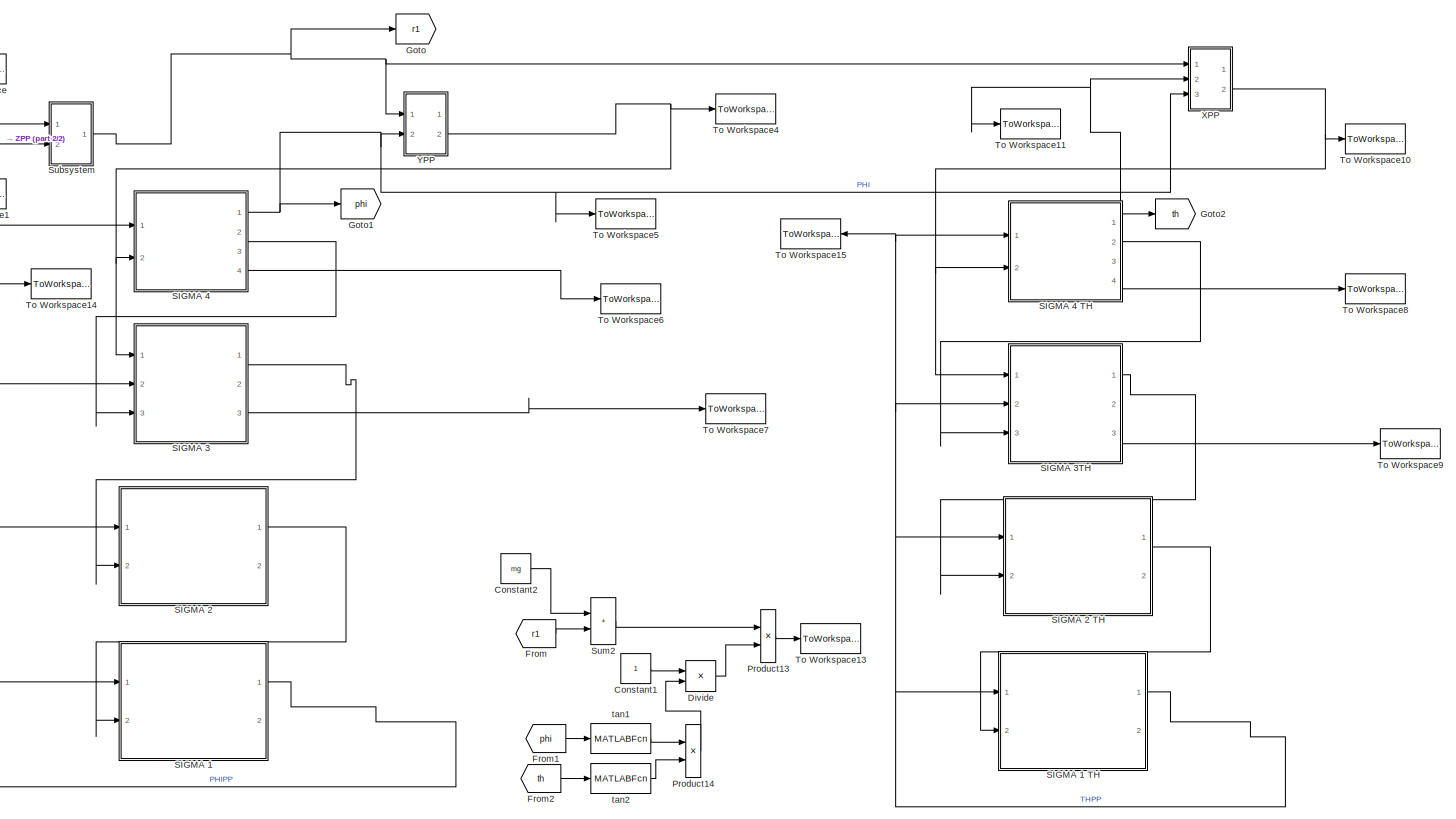
[diagram: root canvas - part 1/2, most of the canvas]
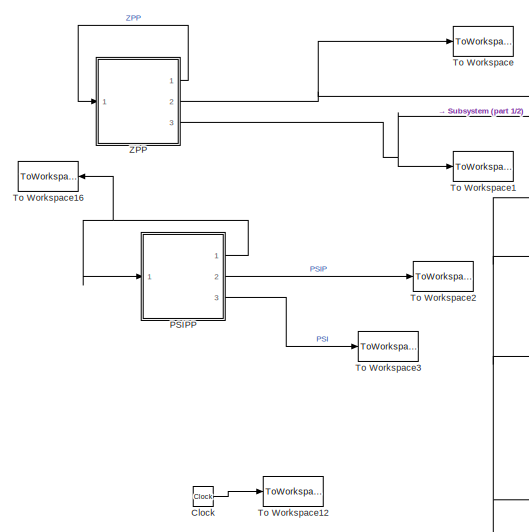
[diagram: root canvas - part 2/2, middle left region]
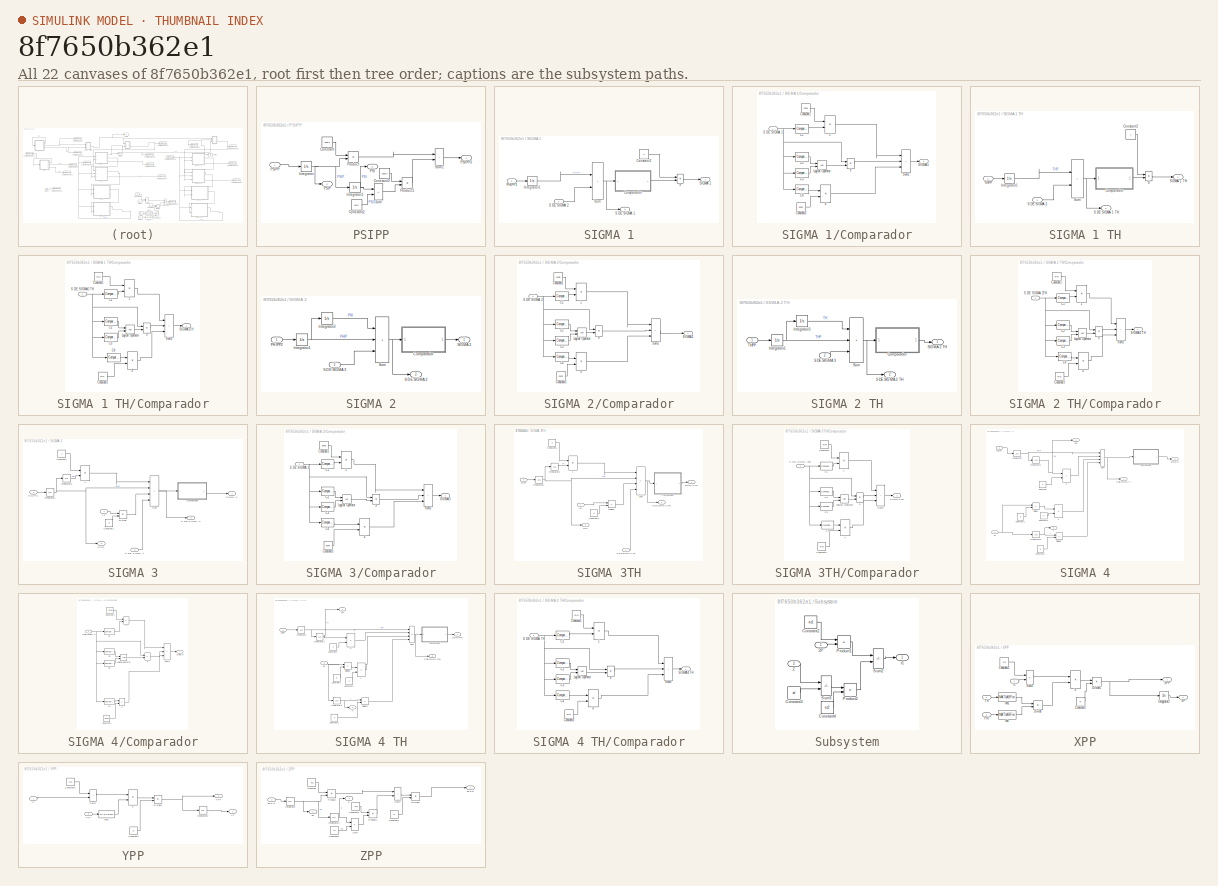
[diagram: thumbnail index - all 22 canvases of the model, root first then tree order]
MODEL slx_8f7650b362e1
KIND model
CONFIG AbsTol = auto
CONFIG EnableMultiTasking = on
CONFIG FixedStep = auto
CONFIG MaxStep = auto
CONFIG MinStep = auto
CONFIG RelTol = 1e-3
CONFIG SampleTimeConstraint = Unconstrained
CONFIG SolverName = ode45
CONFIG StartTime = 0.0
CONFIG StopTime = 250
BLOCK [Clock] Clock
BLOCK [Constant] Constant1
BLOCK [Constant] Constant2
  Value = mg
BLOCK [Product] Divide
  Inputs = */
  Ports = [2, 1]
BLOCK [From] From
  GotoTag = r1
BLOCK [From] From1
  GotoTag = phi
BLOCK [From] From2
  GotoTag = th
BLOCK [Goto] Goto
  GotoTag = r1
BLOCK [Goto] Goto1
  GotoTag = phi
BLOCK [Goto] Goto2
  GotoTag = th
BLOCK [SubSystem] PSIPP
  Ports = [1, 3]
  RequestExecContextInheritance = off
BLOCK [Constant] PSIPP/Constant
  Value = -apsi1
BLOCK [Constant] PSIPP/Constant2
  Value = psid
BLOCK [Constant] PSIPP/Constant3
  Value = -apsi2
BLOCK [Integrator] PSIPP/Integrator
  InitialCondition = ci_psip
  Ports = [1, 1]
BLOCK [Integrator] PSIPP/Integrator1
  InitialCondition = ci_psi
  Ports = [1, 1]
BLOCK [Outport] PSIPP/PSI
  Port = 3
BLOCK [Outport] PSIPP/PSIP
  Port = 2
BLOCK [Inport] PSIPP/PSIPP
BLOCK [Outport] PSIPP/PSIPPO
BLOCK [Product] PSIPP/Product
  Ports = [2, 1]
  RndMeth = Zero
BLOCK [Product] PSIPP/Product1
  Ports = [2, 1]
  RndMeth = Zero
BLOCK [Sum] PSIPP/Sum
  IconShape = rectangular
  Inputs = +-
  Ports = [2, 1]
BLOCK [Sum] PSIPP/Sum1
  IconShape = rectangular
  Ports = [2, 1]
BLOCK [Product] Product13
  Ports = [2, 1]
  RndMeth = Zero
BLOCK [Product] Product14
  Ports = [2, 1]
  RndMeth = Zero
BLOCK [SubSystem] SIGMA 1
  Ports = [2, 2]
  RequestExecContextInheritance = off
BLOCK [SubSystem] SIGMA 1 TH
  Ports = [2, 2]
  RequestExecContextInheritance = off
BLOCK [Product] SIGMA 1 TH/9
  OutDataTypeStr = double
  Ports = [2, 1]
  RndMeth = Zero
BLOCK [SubSystem] SIGMA 1 TH/Comparador
  Ports = [1, 1]
  RequestExecContextInheritance = off
BLOCK [Product] SIGMA 1 TH/Comparador/1
  Ports = [2, 1]
  RndMeth = Zero
BLOCK [Product] SIGMA 1 TH/Comparador/4
  Ports = [2, 1]
  RndMeth = Zero
BLOCK [Product] SIGMA 1 TH/Comparador/9
  OutDataTypeStr = double
  Ports = [2, 1]
  RndMeth = Zero
BLOCK [Reference] SIGMA 1 TH/Comparador/C1  REF=simulink/Logic and Bit
Operations/Compare
To Constant
  Ports = [1, 1]
  SourceBlock = simulink/Logic and Bit\nOperations/Compare\nTo Constant
  SourceProductBaseCode = SL
  SourceType = Compare To Constant
BLOCK [Reference] SIGMA 1 TH/Comparador/C2  REF=simulink/Logic and Bit
Operations/Compare
To Constant
  Ports = [1, 1]
  SourceBlock = simulink/Logic and Bit\nOperations/Compare\nTo Constant
  SourceProductBaseCode = SL
  SourceType = Compare To Constant
BLOCK [Reference] SIGMA 1 TH/Comparador/C3  REF=simulink/Logic and Bit
Operations/Compare
To Constant
  Ports = [1, 1]
  SourceBlock = simulink/Logic and Bit\nOperations/Compare\nTo Constant
  SourceProductBaseCode = SL
  SourceType = Compare To Constant
BLOCK [Reference] SIGMA 1 TH/Comparador/C4  REF=simulink/Logic and Bit
Operations/Compare
To Constant
  Ports = [1, 1]
  SourceBlock = simulink/Logic and Bit\nOperations/Compare\nTo Constant
  SourceProductBaseCode = SL
  SourceType = Compare To Constant
BLOCK [Constant] SIGMA 1 TH/Comparador/Constant1
  OutDataTypeStr = double
  Value = -bth1
BLOCK [Constant] SIGMA 1 TH/Comparador/Constant3
  OutDataTypeStr = double
  Value = bth1
BLOCK [Logic] SIGMA 1 TH/Comparador/Logical Operator
  AllPortsSameDT = off
  OutDataTypeStr = boolean
  Ports = [2, 1]
BLOCK [Inport] SIGMA 1 TH/Comparador/S DE SIGMA1 TH
BLOCK [Outport] SIGMA 1 TH/Comparador/SIGMA1TH
BLOCK [Sum] SIGMA 1 TH/Comparador/Sum2
  IconShape = rectangular
  Inputs = |+++
  OutDataTypeStr = double
  Ports = [3, 1]
BLOCK [Constant] SIGMA 1 TH/Constant2
  Value = -1
  VectorParams1D = off
BLOCK [Integrator] SIGMA 1 TH/Integrator1
  InitialCondition = ci_thp
  Ports = [1, 1]
BLOCK [Outport] SIGMA 1 TH/S DE SIGMA 1 TH
  Port = 2
BLOCK [Inport] SIGMA 1 TH/S DE SIGMA 2
  Port = 2
BLOCK [Outport] SIGMA 1 TH/SIGMA 1 TH
BLOCK [Sum] SIGMA 1 TH/Sum
  IconShape = rectangular
  OutDataTypeStr = double
  Ports = [2, 1]
BLOCK [Inport] SIGMA 1 TH/THPP
BLOCK [Product] SIGMA 1/9
  Ports = [2, 1]
  RndMeth = Zero
BLOCK [SubSystem] SIGMA 1/Comparador
  Ports = [1, 1]
  RequestExecContextInheritance = off
BLOCK [Product] SIGMA 1/Comparador/1
  Ports = [2, 1]
  RndMeth = Zero
BLOCK [Product] SIGMA 1/Comparador/4
  Ports = [2, 1]
  RndMeth = Zero
BLOCK [Product] SIGMA 1/Comparador/9
  Ports = [2, 1]
  RndMeth = Zero
BLOCK [Reference] SIGMA 1/Comparador/C1  REF=simulink/Logic and Bit
Operations/Compare
To Constant
  Ports = [1, 1]
  SourceBlock = simulink/Logic and Bit\nOperations/Compare\nTo Constant
  SourceProductBaseCode = SL
  SourceType = Compare To Constant
BLOCK [Reference] SIGMA 1/Comparador/C2  REF=simulink/Logic and Bit
Operations/Compare
To Constant
  Ports = [1, 1]
  SourceBlock = simulink/Logic and Bit\nOperations/Compare\nTo Constant
  SourceProductBaseCode = SL
  SourceType = Compare To Constant
BLOCK [Reference] SIGMA 1/Comparador/C3  REF=simulink/Logic and Bit
Operations/Compare
To Constant
  Ports = [1, 1]
  SourceBlock = simulink/Logic and Bit\nOperations/Compare\nTo Constant
  SourceProductBaseCode = SL
  SourceType = Compare To Constant
BLOCK [Reference] SIGMA 1/Comparador/C4  REF=simulink/Logic and Bit
Operations/Compare
To Constant
  Ports = [1, 1]
  SourceBlock = simulink/Logic and Bit\nOperations/Compare\nTo Constant
  SourceProductBaseCode = SL
  SourceType = Compare To Constant
BLOCK [Constant] SIGMA 1/Comparador/Constant1
  OutDataTypeStr = double
  Value = -bphi1
BLOCK [Constant] SIGMA 1/Comparador/Constant3
  OutDataTypeStr = double
  Value = bphi1
BLOCK [Logic] SIGMA 1/Comparador/Logical Operator
  AllPortsSameDT = off
  OutDataTypeStr = boolean
  Ports = [2, 1]
BLOCK [Inport] SIGMA 1/Comparador/S DE SIGMA 1
BLOCK [Outport] SIGMA 1/Comparador/SIGMA1
BLOCK [Sum] SIGMA 1/Comparador/Sum2
  IconShape = rectangular
  Inputs = |+++
  Ports = [3, 1]
BLOCK [Constant] SIGMA 1/Constant2
  Value = -1
  VectorParams1D = off
BLOCK [Integrator] SIGMA 1/Integrator1
  InitialCondition = ci_phip
  Ports = [1, 1]
BLOCK [Inport] SIGMA 1/PHIPP1
BLOCK [Outport] SIGMA 1/S DE SIGMA 1
  Port = 2
BLOCK [Inport] SIGMA 1/S DE SIGMA 2
  Port = 2
BLOCK [Outport] SIGMA 1/SIGMA 1
BLOCK [Sum] SIGMA 1/Sum
  AccumDataTypeStr = double
  IconShape = rectangular
  OutDataTypeStr = double
  Ports = [2, 1]
BLOCK [SubSystem] SIGMA 2
  Ports = [2, 2]
  RequestExecContextInheritance = off
BLOCK [SubSystem] SIGMA 2 TH
  Ports = [2, 2]
  RequestExecContextInheritance = off
BLOCK [SubSystem] SIGMA 2 TH/Comparador
  Ports = [1, 1]
  RequestExecContextInheritance = off
BLOCK [Product] SIGMA 2 TH/Comparador/1
  Ports = [2, 1]
  RndMeth = Zero
BLOCK [Product] SIGMA 2 TH/Comparador/4
  Ports = [2, 1]
  RndMeth = Zero
BLOCK [Product] SIGMA 2 TH/Comparador/9
  OutDataTypeStr = double
  Ports = [2, 1]
  RndMeth = Zero
BLOCK [Reference] SIGMA 2 TH/Comparador/C1  REF=simulink/Logic and Bit
Operations/Compare
To Constant
  Ports = [1, 1]
  SourceBlock = simulink/Logic and Bit\nOperations/Compare\nTo Constant
  SourceProductBaseCode = SL
  SourceType = Compare To Constant
BLOCK [Reference] SIGMA 2 TH/Comparador/C2  REF=simulink/Logic and Bit
Operations/Compare
To Constant
  Ports = [1, 1]
  SourceBlock = simulink/Logic and Bit\nOperations/Compare\nTo Constant
  SourceProductBaseCode = SL
  SourceType = Compare To Constant
BLOCK [Reference] SIGMA 2 TH/Comparador/C3  REF=simulink/Logic and Bit
Operations/Compare
To Constant
  Ports = [1, 1]
  SourceBlock = simulink/Logic and Bit\nOperations/Compare\nTo Constant
  SourceProductBaseCode = SL
  SourceType = Compare To Constant
BLOCK [Reference] SIGMA 2 TH/Comparador/C4  REF=simulink/Logic and Bit
Operations/Compare
To Constant
  Ports = [1, 1]
  SourceBlock = simulink/Logic and Bit\nOperations/Compare\nTo Constant
  SourceProductBaseCode = SL
  SourceType = Compare To Constant
BLOCK [Constant] SIGMA 2 TH/Comparador/Constant1
  OutDataTypeStr = double
  Value = -bth2
BLOCK [Constant] SIGMA 2 TH/Comparador/Constant3
  OutDataTypeStr = double
  Value = bth2
BLOCK [Logic] SIGMA 2 TH/Comparador/Logical Operator
  AllPortsSameDT = off
  OutDataTypeStr = boolean
  Ports = [2, 1]
BLOCK [Inport] SIGMA 2 TH/Comparador/S DE SIGMA 2TH
BLOCK [Outport] SIGMA 2 TH/Comparador/SIGMA2 TH
BLOCK [Sum] SIGMA 2 TH/Comparador/Sum2
  IconShape = rectangular
  Inputs = |+++
  OutDataTypeStr = double
  Ports = [3, 1]
BLOCK [Integrator] SIGMA 2 TH/Integrator1
  InitialCondition = ci_thp
  Ports = [1, 1]
BLOCK [Integrator] SIGMA 2 TH/Integrator3
  InitialCondition = ci_th
  Ports = [1, 1]
BLOCK [Outport] SIGMA 2 TH/S DE SIGMA 2 TH
  Port = 2
BLOCK [Inport] SIGMA 2 TH/S DE SIGMA 3
  Port = 2
BLOCK [Outport] SIGMA 2 TH/SIGMA 2 TH
BLOCK [Sum] SIGMA 2 TH/Sum
  IconShape = rectangular
  Inputs = +++
  Ports = [3, 1]
BLOCK [Inport] SIGMA 2 TH/THPP
BLOCK [SubSystem] SIGMA 2/Comparador
  Ports = [1, 1]
  RequestExecContextInheritance = off
BLOCK [Product] SIGMA 2/Comparador/1
  Ports = [2, 1]
  RndMeth = Zero
BLOCK [Product] SIGMA 2/Comparador/4
  Ports = [2, 1]
  RndMeth = Zero
BLOCK [Product] SIGMA 2/Comparador/9
  Ports = [2, 1]
  RndMeth = Zero
BLOCK [Reference] SIGMA 2/Comparador/C1  REF=simulink/Logic and Bit
Operations/Compare
To Constant
  Ports = [1, 1]
  SourceBlock = simulink/Logic and Bit\nOperations/Compare\nTo Constant
  SourceProductBaseCode = SL
  SourceType = Compare To Constant
BLOCK [Reference] SIGMA 2/Comparador/C2  REF=simulink/Logic and Bit
Operations/Compare
To Constant
  Ports = [1, 1]
  SourceBlock = simulink/Logic and Bit\nOperations/Compare\nTo Constant
  SourceProductBaseCode = SL
  SourceType = Compare To Constant
BLOCK [Reference] SIGMA 2/Comparador/C3  REF=simulink/Logic and Bit
Operations/Compare
To Constant
  Ports = [1, 1]
  SourceBlock = simulink/Logic and Bit\nOperations/Compare\nTo Constant
  SourceProductBaseCode = SL
  SourceType = Compare To Constant
BLOCK [Reference] SIGMA 2/Comparador/C4  REF=simulink/Logic and Bit
Operations/Compare
To Constant
  Ports = [1, 1]
  SourceBlock = simulink/Logic and Bit\nOperations/Compare\nTo Constant
  SourceProductBaseCode = SL
  SourceType = Compare To Constant
BLOCK [Constant] SIGMA 2/Comparador/Constant1
  OutDataTypeStr = double
  Value = -bphi2
BLOCK [Constant] SIGMA 2/Comparador/Constant3
  OutDataTypeStr = double
  Value = bphi2
BLOCK [Logic] SIGMA 2/Comparador/Logical Operator
  AllPortsSameDT = off
  OutDataTypeStr = boolean
  Ports = [2, 1]
BLOCK [Inport] SIGMA 2/Comparador/S DE SIGMA 2
BLOCK [Outport] SIGMA 2/Comparador/SIGMA2
BLOCK [Sum] SIGMA 2/Comparador/Sum2
  IconShape = rectangular
  Inputs = |+++
  Ports = [3, 1]
BLOCK [Integrator] SIGMA 2/Integrator1
  InitialCondition = ci_phip
  Ports = [1, 1]
BLOCK [Integrator] SIGMA 2/Integrator3
  InitialCondition = ci_phi
  Ports = [1, 1]
BLOCK [Inport] SIGMA 2/PHIPP2
BLOCK [Outport] SIGMA 2/S DE SIGMA 2
  Port = 2
BLOCK [Inport] SIGMA 2/S DE SIGMA 3
  Port = 2
BLOCK [Outport] SIGMA 2/SIGMA 2
BLOCK [Sum] SIGMA 2/Sum
  AccumDataTypeStr = double
  IconShape = rectangular
  InputSameDT = on
  Inputs = +++
  OutDataTypeStr = double
  Ports = [3, 1]
BLOCK [SubSystem] SIGMA 3
  Ports = [3, 3]
  RequestExecContextInheritance = off
BLOCK [Product] SIGMA 3/4
  Ports = [2, 1]
  RndMeth = Zero
BLOCK [SubSystem] SIGMA 3/Comparador
  Ports = [1, 1]
  RequestExecContextInheritance = off
BLOCK [Product] SIGMA 3/Comparador/1
  Ports = [2, 1]
  RndMeth = Zero
BLOCK [Product] SIGMA 3/Comparador/4
  Ports = [2, 1]
  RndMeth = Zero
BLOCK [Product] SIGMA 3/Comparador/9
  Ports = [2, 1]
  RndMeth = Zero
BLOCK [Reference] SIGMA 3/Comparador/C1  REF=simulink/Logic and Bit
Operations/Compare
To Constant
  Ports = [1, 1]
  SourceBlock = simulink/Logic and Bit\nOperations/Compare\nTo Constant
  SourceProductBaseCode = SL
  SourceType = Compare To Constant
BLOCK [Reference] SIGMA 3/Comparador/C2  REF=simulink/Logic and Bit
Operations/Compare
To Constant
  Ports = [1, 1]
  SourceBlock = simulink/Logic and Bit\nOperations/Compare\nTo Constant
  SourceProductBaseCode = SL
  SourceType = Compare To Constant
BLOCK [Reference] SIGMA 3/Comparador/C3  REF=simulink/Logic and Bit
Operations/Compare
To Constant
  Ports = [1, 1]
  SourceBlock = simulink/Logic and Bit\nOperations/Compare\nTo Constant
  SourceProductBaseCode = SL
  SourceType = Compare To Constant
BLOCK [Reference] SIGMA 3/Comparador/C4  REF=simulink/Logic and Bit
Operations/Compare
To Constant
  Ports = [1, 1]
  SourceBlock = simulink/Logic and Bit\nOperations/Compare\nTo Constant
  SourceProductBaseCode = SL
  SourceType = Compare To Constant
BLOCK [Constant] SIGMA 3/Comparador/Constant1
  OutDataTypeStr = double
  Value = -bphi3
BLOCK [Constant] SIGMA 3/Comparador/Constant3
  OutDataTypeStr = double
  Value = bphi3
BLOCK [Logic] SIGMA 3/Comparador/Logical Operator
  AllPortsSameDT = off
  OutDataTypeStr = boolean
  Ports = [2, 1]
BLOCK [Inport] SIGMA 3/Comparador/S DE SIGMA 3
BLOCK [Outport] SIGMA 3/Comparador/SIGMA3
BLOCK [Sum] SIGMA 3/Comparador/Sum2
  IconShape = rectangular
  Inputs = |+++
  Ports = [3, 1]
BLOCK [Constant] SIGMA 3/Constant1
  OutDataTypeStr = double
  Value = g
BLOCK [Constant] SIGMA 3/Constant2
  OutDataTypeStr = double
  Value = 2
BLOCK [Product] SIGMA 3/Divide
  Inputs = */
  Ports = [2, 1]
BLOCK [Integrator] SIGMA 3/Integrator1
  InitialCondition = ci_phip
  Ports = [1, 1]
BLOCK [Integrator] SIGMA 3/Integrator3
  InitialCondition = ci_phi
  Ports = [1, 1]
BLOCK [Outport] SIGMA 3/PHIP
  Port = 3
BLOCK [Inport] SIGMA 3/PHIPP1
  Port = 2
BLOCK [Outport] SIGMA 3/S DE SIGMA 3
  Port = 2
BLOCK [Inport] SIGMA 3/S DE SIGMA 4
  NameLocation = top
  Port = 3
BLOCK [Outport] SIGMA 3/SIGMA 3
BLOCK [Sum] SIGMA 3/Sum
  AccumDataTypeStr = double
  IconShape = rectangular
  InputSameDT = on
  Inputs = |++++
  OutDataTypeStr = double
  Ports = [4, 1]
BLOCK [Inport] SIGMA 3/YP
BLOCK [SubSystem] SIGMA 3TH
  Ports = [3, 3]
  RequestExecContextInheritance = off
BLOCK [Product] SIGMA 3TH/1
  Ports = [2, 1]
  RndMeth = Zero
BLOCK [SubSystem] SIGMA 3TH/Comparador
  Ports = [1, 1]
  RequestExecContextInheritance = off
BLOCK [Product] SIGMA 3TH/Comparador/1
  Ports = [2, 1]
  RndMeth = Zero
BLOCK [Product] SIGMA 3TH/Comparador/4
  Ports = [2, 1]
  RndMeth = Zero
BLOCK [Product] SIGMA 3TH/Comparador/9
  OutDataTypeStr = double
  Ports = [2, 1]
  RndMeth = Zero
BLOCK [Reference] SIGMA 3TH/Comparador/C1  REF=simulink/Logic and Bit
Operations/Compare
To Constant
  Ports = [1, 1]
  SourceBlock = simulink/Logic and Bit\nOperations/Compare\nTo Constant
  SourceProductBaseCode = SL
  SourceType = Compare To Constant
BLOCK [Reference] SIGMA 3TH/Comparador/C2  REF=simulink/Logic and Bit
Operations/Compare
To Constant
  Ports = [1, 1]
  SourceBlock = simulink/Logic and Bit\nOperations/Compare\nTo Constant
  SourceProductBaseCode = SL
  SourceType = Compare To Constant
BLOCK [Reference] SIGMA 3TH/Comparador/C3  REF=simulink/Logic and Bit
Operations/Compare
To Constant
  Ports = [1, 1]
  SourceBlock = simulink/Logic and Bit\nOperations/Compare\nTo Constant
  SourceProductBaseCode = SL
  SourceType = Compare To Constant
BLOCK [Reference] SIGMA 3TH/Comparador/C4  REF=simulink/Logic and Bit
Operations/Compare
To Constant
  Ports = [1, 1]
  SourceBlock = simulink/Logic and Bit\nOperations/Compare\nTo Constant
  SourceProductBaseCode = SL
  SourceType = Compare To Constant
BLOCK [Constant] SIGMA 3TH/Comparador/Constant1
  OutDataTypeStr = double
  Value = -bth3
BLOCK [Constant] SIGMA 3TH/Comparador/Constant3
  OutDataTypeStr = double
  Value = bth3
BLOCK [Logic] SIGMA 3TH/Comparador/Logical Operator
  AllPortsSameDT = off
  OutDataTypeStr = boolean
  Ports = [2, 1]
BLOCK [Inport] SIGMA 3TH/Comparador/S DE SIGMA 3TH
BLOCK [Outport] SIGMA 3TH/Comparador/SIGMA3 TH
BLOCK [Sum] SIGMA 3TH/Comparador/Sum2
  IconShape = rectangular
  Inputs = |+++
  OutDataTypeStr = double
  Ports = [3, 1]
BLOCK [Constant] SIGMA 3TH/Constant1
  OutDataTypeStr = double
  Value = 2
BLOCK [Constant] SIGMA 3TH/Constant3
  OutDataTypeStr = double
  Value = g
BLOCK [Product] SIGMA 3TH/Divide1
  Inputs = */
  Ports = [2, 1]
BLOCK [Integrator] SIGMA 3TH/Integrator1
  InitialCondition = ci_thp
  Ports = [1, 1]
BLOCK [Integrator] SIGMA 3TH/Integrator3
  InitialCondition = ci_th
  Ports = [1, 1]
BLOCK [Outport] SIGMA 3TH/S DE SIGMA 3 TH
  Port = 2
BLOCK [Inport] SIGMA 3TH/S DE SIGMA 4 TH
  Port = 3
BLOCK [Outport] SIGMA 3TH/SIGMA 3 TH
BLOCK [Sum] SIGMA 3TH/Sum
  IconShape = rectangular
  Inputs = |++-+
  OutDataTypeStr = double
  Ports = [4, 1]
BLOCK [Outport] SIGMA 3TH/THP
  Port = 3
BLOCK [Inport] SIGMA 3TH/THPP
  Port = 2
BLOCK [Inport] SIGMA 3TH/XP
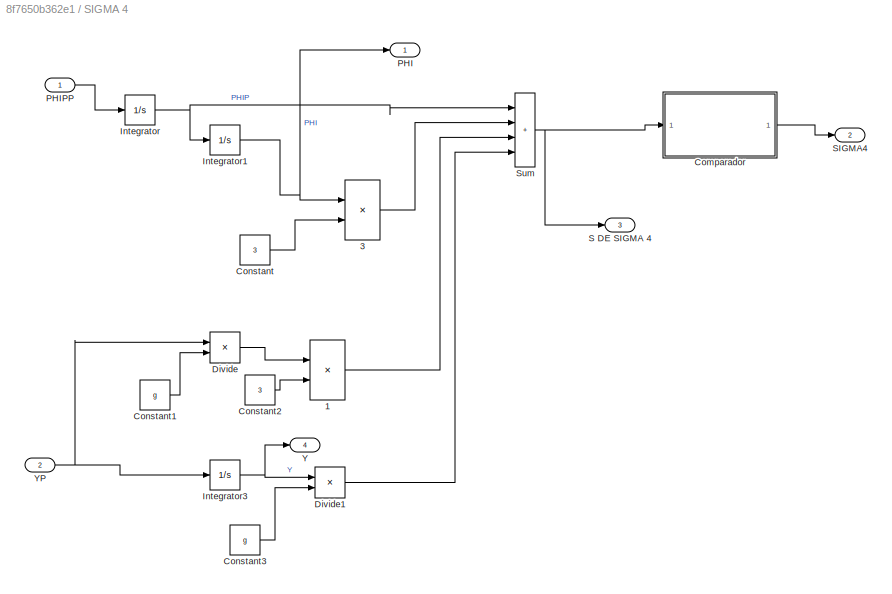
BLOCK [SubSystem] SIGMA 4
  Ports = [2, 4]
  RequestExecContextInheritance = off
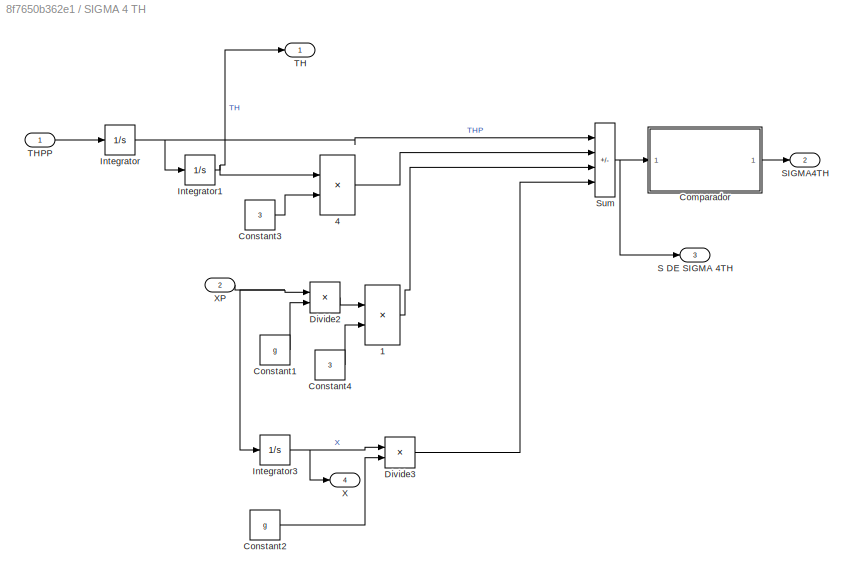
BLOCK [SubSystem] SIGMA 4 TH
  Ports = [2, 4]
  RequestExecContextInheritance = off
BLOCK [Product] SIGMA 4 TH/1
  Ports = [2, 1]
  RndMeth = Zero
BLOCK [Product] SIGMA 4 TH/4
  Ports = [2, 1]
  RndMeth = Zero
BLOCK [SubSystem] SIGMA 4 TH/Comparador
  Ports = [1, 1]
  RequestExecContextInheritance = off
BLOCK [Product] SIGMA 4 TH/Comparador/1
  Ports = [2, 1]
  RndMeth = Zero
BLOCK [Product] SIGMA 4 TH/Comparador/4
  Ports = [2, 1]
  RndMeth = Zero
BLOCK [Product] SIGMA 4 TH/Comparador/9
  Ports = [2, 1]
  RndMeth = Zero
BLOCK [Reference] SIGMA 4 TH/Comparador/C1  REF=simulink/Logic and Bit
Operations/Compare
To Constant
  Ports = [1, 1]
  SourceBlock = simulink/Logic and Bit\nOperations/Compare\nTo Constant
  SourceProductBaseCode = SL
  SourceType = Compare To Constant
BLOCK [Reference] SIGMA 4 TH/Comparador/C2  REF=simulink/Logic and Bit
Operations/Compare
To Constant
  Ports = [1, 1]
  SourceBlock = simulink/Logic and Bit\nOperations/Compare\nTo Constant
  SourceProductBaseCode = SL
  SourceType = Compare To Constant
BLOCK [Reference] SIGMA 4 TH/Comparador/C3  REF=simulink/Logic and Bit
Operations/Compare
To Constant
  Ports = [1, 1]
  SourceBlock = simulink/Logic and Bit\nOperations/Compare\nTo Constant
  SourceProductBaseCode = SL
  SourceType = Compare To Constant
BLOCK [Reference] SIGMA 4 TH/Comparador/C4  REF=simulink/Logic and Bit
Operations/Compare
To Constant
  Ports = [1, 1]
  SourceBlock = simulink/Logic and Bit\nOperations/Compare\nTo Constant
  SourceProductBaseCode = SL
  SourceType = Compare To Constant
BLOCK [Constant] SIGMA 4 TH/Comparador/Constant1
  OutDataTypeStr = double
  Value = -bth4
BLOCK [Constant] SIGMA 4 TH/Comparador/Constant3
  OutDataTypeStr = double
  Value = bth4
BLOCK [Logic] SIGMA 4 TH/Comparador/Logical Operator
  AllPortsSameDT = off
  OutDataTypeStr = boolean
  Ports = [2, 1]
BLOCK [Inport] SIGMA 4 TH/Comparador/S DE SIGMA TH
BLOCK [Outport] SIGMA 4 TH/Comparador/SIGMA4 TH
BLOCK [Sum] SIGMA 4 TH/Comparador/Sum2
  IconShape = rectangular
  Inputs = |+++
  Ports = [3, 1]
BLOCK [Constant] SIGMA 4 TH/Constant1
  OutDataTypeStr = double
  Value = g
BLOCK [Constant] SIGMA 4 TH/Constant2
  OutDataTypeStr = double
  Value = g
BLOCK [Constant] SIGMA 4 TH/Constant3
  OutDataTypeStr = double
  Value = 3
BLOCK [Constant] SIGMA 4 TH/Constant4
  OutDataTypeStr = double
  Value = 3
BLOCK [Product] SIGMA 4 TH/Divide2
  Inputs = */
  Ports = [2, 1]
BLOCK [Product] SIGMA 4 TH/Divide3
  Inputs = */
  Ports = [2, 1]
BLOCK [Integrator] SIGMA 4 TH/Integrator
  InitialCondition = ci_thp
  Ports = [1, 1]
BLOCK [Integrator] SIGMA 4 TH/Integrator1
  InitialCondition = ci_th
  Ports = [1, 1]
BLOCK [Integrator] SIGMA 4 TH/Integrator3
  InitialCondition = ci_x
  Ports = [1, 1]
BLOCK [Outport] SIGMA 4 TH/S DE SIGMA 4TH
  Port = 3
BLOCK [Outport] SIGMA 4 TH/SIGMA4TH
  Port = 2
BLOCK [Sum] SIGMA 4 TH/Sum
  IconShape = rectangular
  Inputs = |++--
  Ports = [4, 1]
BLOCK [Outport] SIGMA 4 TH/TH
BLOCK [Inport] SIGMA 4 TH/THPP
BLOCK [Outport] SIGMA 4 TH/X
  Port = 4
BLOCK [Inport] SIGMA 4 TH/XP
  Port = 2
BLOCK [Product] SIGMA 4/1
  Ports = [2, 1]
  RndMeth = Zero
BLOCK [Product] SIGMA 4/3
  Ports = [2, 1]
  RndMeth = Zero
BLOCK [SubSystem] SIGMA 4/Comparador
  Ports = [1, 1]
  RequestExecContextInheritance = off
BLOCK [Product] SIGMA 4/Comparador/1
  OutDataTypeStr = double
  Ports = [2, 1]
  RndMeth = Zero
BLOCK [Product] SIGMA 4/Comparador/2
  OutDataTypeStr = double
  Ports = [2, 1]
  RndMeth = Zero
BLOCK [Product] SIGMA 4/Comparador/9
  OutDataTypeStr = double
  Ports = [2, 1]
  RndMeth = Zero
BLOCK [Reference] SIGMA 4/Comparador/C1  REF=simulink/Logic and Bit
Operations/Compare
To Constant
  Ports = [1, 1]
  SourceBlock = simulink/Logic and Bit\nOperations/Compare\nTo Constant
  SourceProductBaseCode = SL
  SourceType = Compare To Constant
BLOCK [Reference] SIGMA 4/Comparador/C2  REF=simulink/Logic and Bit
Operations/Compare
To Constant
  Ports = [1, 1]
  SourceBlock = simulink/Logic and Bit\nOperations/Compare\nTo Constant
  SourceProductBaseCode = SL
  SourceType = Compare To Constant
BLOCK [Reference] SIGMA 4/Comparador/C3  REF=simulink/Logic and Bit
Operations/Compare
To Constant
  Ports = [1, 1]
  SourceBlock = simulink/Logic and Bit\nOperations/Compare\nTo Constant
  SourceProductBaseCode = SL
  SourceType = Compare To Constant
BLOCK [Reference] SIGMA 4/Comparador/C4  REF=simulink/Logic and Bit
Operations/Compare
To Constant
  Ports = [1, 1]
  SourceBlock = simulink/Logic and Bit\nOperations/Compare\nTo Constant
  SourceProductBaseCode = SL
  SourceType = Compare To Constant
BLOCK [Constant] SIGMA 4/Comparador/Constant1
  OutDataTypeStr = double
  Value = bphi4
BLOCK [Constant] SIGMA 4/Comparador/Constant2
  OutDataTypeStr = double
  Value = -bphi4
BLOCK [Logic] SIGMA 4/Comparador/Logical Operator
  AllPortsSameDT = off
  OutDataTypeStr = boolean
  Ports = [2, 1]
BLOCK [Inport] SIGMA 4/Comparador/S DE SIGMA 4
BLOCK [Outport] SIGMA 4/Comparador/SIGMA4
BLOCK [Sum] SIGMA 4/Comparador/Sum2
  IconShape = rectangular
  Inputs = |+++
  Ports = [3, 1]
BLOCK [Constant] SIGMA 4/Constant
  OutDataTypeStr = double
  Value = 3
BLOCK [Constant] SIGMA 4/Constant1
  OutDataTypeStr = double
  Value = g
BLOCK [Constant] SIGMA 4/Constant2
  OutDataTypeStr = double
  Value = 3
BLOCK [Constant] SIGMA 4/Constant3
  OutDataTypeStr = double
  Value = g
BLOCK [Product] SIGMA 4/Divide
  Inputs = */
  Ports = [2, 1]
BLOCK [Product] SIGMA 4/Divide1
  Inputs = */
  Ports = [2, 1]
BLOCK [Integrator] SIGMA 4/Integrator
  InitialCondition = ci_phip
  Ports = [1, 1]
BLOCK [Integrator] SIGMA 4/Integrator1
  InitialCondition = ci_phi
  Ports = [1, 1]
BLOCK [Integrator] SIGMA 4/Integrator3
  InitialCondition = ci_y
  Ports = [1, 1]
BLOCK [Outport] SIGMA 4/PHI
BLOCK [Inport] SIGMA 4/PHIPP
BLOCK [Outport] SIGMA 4/S DE SIGMA 4
  Port = 3
BLOCK [Outport] SIGMA 4/SIGMA4
  Port = 2
BLOCK [Sum] SIGMA 4/Sum
  IconShape = rectangular
  Inputs = |++++
  Ports = [4, 1]
BLOCK [Outport] SIGMA 4/Y
  Port = 4
BLOCK [Inport] SIGMA 4/YP
  Port = 2
BLOCK [SubSystem] Subsystem
  Ports = [2, 1]
  RequestExecContextInheritance = off
BLOCK [Constant] Subsystem/Constant2
  Value = -az1
BLOCK [Constant] Subsystem/Constant3
  Value = zd
BLOCK [Constant] Subsystem/Constant4
  Value = az2
BLOCK [Product] Subsystem/Product1
  Ports = [2, 1]
  RndMeth = Zero
BLOCK [Product] Subsystem/Product2
  Ports = [2, 1]
  RndMeth = Zero
BLOCK [Sum] Subsystem/Sum2
  IconShape = rectangular
  Inputs = +-
  Ports = [2, 1]
BLOCK [Sum] Subsystem/Sum3
  IconShape = rectangular
  Inputs = +-
  Ports = [2, 1]
BLOCK [Inport] Subsystem/Z
  Port = 2
BLOCK [Inport] Subsystem/ZP
BLOCK [Outport] Subsystem/r1
BLOCK [Sum] Sum2
  IconShape = rectangular
  Ports = [2, 1]
BLOCK [ToWorkspace] To Workspace
  MaxDataPoints = inf
  Ports = [1]
  SampleTime = -1
  VariableName = zp
BLOCK [ToWorkspace] To Workspace1
  MaxDataPoints = inf
  Ports = [1]
  SampleTime = -1
  VariableName = z
BLOCK [ToWorkspace] To Workspace10
  MaxDataPoints = inf
  Ports = [1]
  SampleTime = -1
  VariableName = xp
BLOCK [ToWorkspace] To Workspace11
  MaxDataPoints = inf
  Ports = [1]
  SampleTime = -1
  VariableName = th
BLOCK [ToWorkspace] To Workspace12
  MaxDataPoints = inf
  Ports = [1]
  SampleTime = -1
  VariableName = t
BLOCK [ToWorkspace] To Workspace13
  MaxDataPoints = inf
  Ports = [1]
  SampleTime = -1
  VariableName = u
BLOCK [ToWorkspace] To Workspace14
  MaxDataPoints = inf
  Ports = [1]
  SampleTime = -1
  VariableName = tphi
BLOCK [ToWorkspace] To Workspace15
  MaxDataPoints = inf
  Ports = [1]
  SampleTime = -1
  VariableName = tth
BLOCK [ToWorkspace] To Workspace16
  MaxDataPoints = inf
  Ports = [1]
  SampleTime = -1
  VariableName = tpsi
BLOCK [ToWorkspace] To Workspace2
  MaxDataPoints = inf
  Ports = [1]
  SampleTime = -1
  VariableName = psip
BLOCK [ToWorkspace] To Workspace3
  MaxDataPoints = inf
  Ports = [1]
  SampleTime = -1
  VariableName = psi
BLOCK [ToWorkspace] To Workspace4
  MaxDataPoints = inf
  Ports = [1]
  SampleTime = -1
  VariableName = yp
BLOCK [ToWorkspace] To Workspace5
  MaxDataPoints = inf
  Ports = [1]
  SampleTime = -1
  VariableName = phi
BLOCK [ToWorkspace] To Workspace6
  MaxDataPoints = inf
  Ports = [1]
  SampleTime = -1
  VariableName = y
BLOCK [ToWorkspace] To Workspace7
  MaxDataPoints = inf
  Ports = [1]
  SampleTime = -1
  VariableName = phip
BLOCK [ToWorkspace] To Workspace8
  MaxDataPoints = inf
  Ports = [1]
  SampleTime = -1
  VariableName = x
BLOCK [ToWorkspace] To Workspace9
  MaxDataPoints = inf
  Ports = [1]
  SampleTime = -1
  VariableName = thp
BLOCK [SubSystem] XPP
  Ports = [3, 2]
  RequestExecContextInheritance = off
BLOCK [Product] XPP/9
  OutDataTypeStr = double
  Ports = [2, 1]
  RndMeth = Zero
BLOCK [Constant] XPP/Constant2
  Value = mg
BLOCK [Constant] XPP/Constant3
  OutDataTypeStr = double
  Value = m
BLOCK [Product] XPP/Divide
  Inputs = */
  Ports = [2, 1]
BLOCK [Product] XPP/Divide1
  Inputs = */
  Ports = [2, 1]
BLOCK [Integrator] XPP/Integrator2
  InitialCondition = ci_xp
  Ports = [1, 1]
BLOCK [Inport] XPP/PHI
  Port = 3
BLOCK [Sum] XPP/Sum2
  IconShape = rectangular
  Inputs = --
  Ports = [2, 1]
BLOCK [Inport] XPP/TH
  Port = 2
BLOCK [Outport] XPP/XP
  Port = 2
BLOCK [Outport] XPP/XPP
BLOCK [MATLABFcn] XPP/cos
  MATLABFcn = cos
  Ports = [1, 1]
BLOCK [Inport] XPP/r1
BLOCK [MATLABFcn] XPP/tan1
  MATLABFcn = tan
  Ports = [1, 1]
BLOCK [SubSystem] YPP
  Ports = [2, 2]
  RequestExecContextInheritance = off
BLOCK [Product] YPP/9
  OutDataTypeStr = double
  Ports = [2, 1]
  RndMeth = Zero
BLOCK [Constant] YPP/Constant2
  Value = mg
BLOCK [Constant] YPP/Constant3
  OutDataTypeStr = double
  Value = m
BLOCK [Product] YPP/Divide1
  Inputs = */
  Ports = [2, 1]
BLOCK [Integrator] YPP/Integrator2
  InitialCondition = ci_yp
  Ports = [1, 1]
BLOCK [Inport] YPP/PHI
  Port = 2
BLOCK [Sum] YPP/Sum2
  IconShape = rectangular
  Ports = [2, 1]
BLOCK [Outport] YPP/YP
  Port = 2
BLOCK [Outport] YPP/YPP
BLOCK [Inport] YPP/r1
BLOCK [MATLABFcn] YPP/tan1
  MATLABFcn = tan
  Ports = [1, 1]
BLOCK [SubSystem] ZPP
  Ports = [1, 3]
  RequestExecContextInheritance = off
BLOCK [Constant] ZPP/Constant
  Value = -az1
BLOCK [Constant] ZPP/Constant1
  Value = m
BLOCK [Constant] ZPP/Constant2
  Value = zd
BLOCK [Constant] ZPP/Constant3
  Value = -az2
BLOCK [Product] ZPP/Divide1
  Inputs = */
  Ports = [2, 1]
BLOCK [Integrator] ZPP/Integrator
  InitialCondition = ci_zp
  Ports = [1, 1]
BLOCK [Integrator] ZPP/Integrator1
  InitialCondition = ci_z
  Ports = [1, 1]
BLOCK [Product] ZPP/Product
  Ports = [2, 1]
  RndMeth = Zero
BLOCK [Product] ZPP/Product1
  Ports = [2, 1]
  RndMeth = Zero
BLOCK [Sum] ZPP/Sum
  IconShape = rectangular
  Inputs = +-
  Ports = [2, 1]
BLOCK [Sum] ZPP/Sum1
  IconShape = rectangular
  Ports = [2, 1]
BLOCK [Outport] ZPP/Z
  Port = 3
BLOCK [Outport] ZPP/ZP
  Port = 2
BLOCK [Inport] ZPP/ZPPI1
BLOCK [Outport] ZPP/ZPPO
BLOCK [MATLABFcn] tan1
  MATLABFcn = cos
  Ports = [1, 1]
BLOCK [MATLABFcn] tan2
  MATLABFcn = cos
  Ports = [1, 1]
LINE Clock:1 -> To Workspace12:1
LINE Constant1:1 -> Divide:1
LINE Constant2:1 -> Sum2:1
LINE Divide:1 -> Product13:2
LINE From1:1 -> tan1:1
LINE From2:1 -> tan2:1
LINE From:1 -> Sum2:2
LINE PSIPP/Constant2:1 -> PSIPP/Sum:2
LINE PSIPP/Constant3:1 -> PSIPP/Product1:1
LINE PSIPP/Constant:1 -> PSIPP/Product:1
NET PSIPP/Integrator1:1 -> PSIPP/PSI:1, PSIPP/Sum:1
NET PSIPP/Integrator:1 -> PSIPP/Integrator1:1, PSIPP/PSIP:1, PSIPP/Product:2
LINE PSIPP/PSIPP:1 -> PSIPP/Integrator:1
LINE PSIPP/Product1:1 -> PSIPP/Sum1:2
LINE PSIPP/Product:1 -> PSIPP/Sum1:1
LINE PSIPP/Sum1:1 -> PSIPP/PSIPPO:1
LINE PSIPP/Sum:1 -> PSIPP/Product1:2
NET PSIPP:1 -> PSIPP:1, To Workspace16:1
LINE PSIPP:2 -> To Workspace2:1
LINE PSIPP:3 -> To Workspace3:1
LINE Product13:1 -> To Workspace13:1
LINE Product14:1 -> Divide:2
LINE SIGMA 1 TH/9:1 -> SIGMA 1 TH/SIGMA 1 TH:1
LINE SIGMA 1 TH/Comparador/1:1 -> SIGMA 1 TH/Comparador/Sum2:1
LINE SIGMA 1 TH/Comparador/4:1 -> SIGMA 1 TH/Comparador/Sum2:3
LINE SIGMA 1 TH/Comparador/9:1 -> SIGMA 1 TH/Comparador/Sum2:2
LINE SIGMA 1 TH/Comparador/C1:1 -> SIGMA 1 TH/Comparador/1:2
LINE SIGMA 1 TH/Comparador/C2:1 -> SIGMA 1 TH/Comparador/Logical Operator:1
LINE SIGMA 1 TH/Comparador/C3:1 -> SIGMA 1 TH/Comparador/Logical Operator:2
LINE SIGMA 1 TH/Comparador/C4:1 -> SIGMA 1 TH/Comparador/4:1
LINE SIGMA 1 TH/Comparador/Constant1:1 -> SIGMA 1 TH/Comparador/1:1
LINE SIGMA 1 TH/Comparador/Constant3:1 -> SIGMA 1 TH/Comparador/4:2
LINE SIGMA 1 TH/Comparador/Logical Operator:1 -> SIGMA 1 TH/Comparador/9:2
NET SIGMA 1 TH/Comparador/S DE SIGMA1 TH:1 -> SIGMA 1 TH/Comparador/9:1, SIGMA 1 TH/Comparador/C1:1, SIGMA 1 TH/Comparador/C2:1, SIGMA 1 TH/Comparador/C3:1, SIGMA 1 TH/Comparador/C4:1
LINE SIGMA 1 TH/Comparador/Sum2:1 -> SIGMA 1 TH/Comparador/SIGMA1TH:1
LINE SIGMA 1 TH/Comparador:1 -> SIGMA 1 TH/9:2
LINE SIGMA 1 TH/Constant2:1 -> SIGMA 1 TH/9:1
LINE SIGMA 1 TH/Integrator1:1 -> SIGMA 1 TH/Sum:1
LINE SIGMA 1 TH/S DE SIGMA 2:1 -> SIGMA 1 TH/Sum:2
NET SIGMA 1 TH/Sum:1 -> SIGMA 1 TH/Comparador:1, SIGMA 1 TH/S DE SIGMA 1 TH:1
LINE SIGMA 1 TH/THPP:1 -> SIGMA 1 TH/Integrator1:1
NET SIGMA 1 TH:1 -> SIGMA 1 TH:1, SIGMA 2 TH:1, SIGMA 3TH:2, SIGMA 4 TH:1, To Workspace15:1
LINE SIGMA 1/9:1 -> SIGMA 1/SIGMA 1:1
LINE SIGMA 1/Comparador/1:1 -> SIGMA 1/Comparador/Sum2:1
LINE SIGMA 1/Comparador/4:1 -> SIGMA 1/Comparador/Sum2:3
LINE SIGMA 1/Comparador/9:1 -> SIGMA 1/Comparador/Sum2:2
LINE SIGMA 1/Comparador/C1:1 -> SIGMA 1/Comparador/1:2
LINE SIGMA 1/Comparador/C2:1 -> SIGMA 1/Comparador/Logical Operator:1
LINE SIGMA 1/Comparador/C3:1 -> SIGMA 1/Comparador/Logical Operator:2
LINE SIGMA 1/Comparador/C4:1 -> SIGMA 1/Comparador/4:1
LINE SIGMA 1/Comparador/Constant1:1 -> SIGMA 1/Comparador/1:1
LINE SIGMA 1/Comparador/Constant3:1 -> SIGMA 1/Comparador/4:2
LINE SIGMA 1/Comparador/Logical Operator:1 -> SIGMA 1/Comparador/9:2
NET SIGMA 1/Comparador/S DE SIGMA 1:1 -> SIGMA 1/Comparador/9:1, SIGMA 1/Comparador/C1:1, SIGMA 1/Comparador/C2:1, SIGMA 1/Comparador/C3:1, SIGMA 1/Comparador/C4:1
LINE SIGMA 1/Comparador/Sum2:1 -> SIGMA 1/Comparador/SIGMA1:1
LINE SIGMA 1/Comparador:1 -> SIGMA 1/9:2
LINE SIGMA 1/Constant2:1 -> SIGMA 1/9:1
LINE SIGMA 1/Integrator1:1 -> SIGMA 1/Sum:1
LINE SIGMA 1/PHIPP1:1 -> SIGMA 1/Integrator1:1
LINE SIGMA 1/S DE SIGMA 2:1 -> SIGMA 1/Sum:2
NET SIGMA 1/Sum:1 -> SIGMA 1/Comparador:1, SIGMA 1/S DE SIGMA 1:1
NET SIGMA 1:1 -> SIGMA 1:1, SIGMA 2:1, SIGMA 3:2, SIGMA 4:1, To Workspace14:1
LINE SIGMA 2 TH/Comparador/1:1 -> SIGMA 2 TH/Comparador/Sum2:1
LINE SIGMA 2 TH/Comparador/4:1 -> SIGMA 2 TH/Comparador/Sum2:3
LINE SIGMA 2 TH/Comparador/9:1 -> SIGMA 2 TH/Comparador/Sum2:2
LINE SIGMA 2 TH/Comparador/C1:1 -> SIGMA 2 TH/Comparador/1:2
LINE SIGMA 2 TH/Comparador/C2:1 -> SIGMA 2 TH/Comparador/Logical Operator:1
LINE SIGMA 2 TH/Comparador/C3:1 -> SIGMA 2 TH/Comparador/Logical Operator:2
LINE SIGMA 2 TH/Comparador/C4:1 -> SIGMA 2 TH/Comparador/4:1
LINE SIGMA 2 TH/Comparador/Constant1:1 -> SIGMA 2 TH/Comparador/1:1
LINE SIGMA 2 TH/Comparador/Constant3:1 -> SIGMA 2 TH/Comparador/4:2
LINE SIGMA 2 TH/Comparador/Logical Operator:1 -> SIGMA 2 TH/Comparador/9:2
NET SIGMA 2 TH/Comparador/S DE SIGMA 2TH:1 -> SIGMA 2 TH/Comparador/9:1, SIGMA 2 TH/Comparador/C1:1, SIGMA 2 TH/Comparador/C2:1, SIGMA 2 TH/Comparador/C3:1, SIGMA 2 TH/Comparador/C4:1
LINE SIGMA 2 TH/Comparador/Sum2:1 -> SIGMA 2 TH/Comparador/SIGMA2 TH:1
LINE SIGMA 2 TH/Comparador:1 -> SIGMA 2 TH/SIGMA 2 TH:1
NET SIGMA 2 TH/Integrator1:1 -> SIGMA 2 TH/Integrator3:1, SIGMA 2 TH/Sum:2
LINE SIGMA 2 TH/Integrator3:1 -> SIGMA 2 TH/Sum:1
LINE SIGMA 2 TH/S DE SIGMA 3:1 -> SIGMA 2 TH/Sum:3
NET SIGMA 2 TH/Sum:1 -> SIGMA 2 TH/Comparador:1, SIGMA 2 TH/S DE SIGMA 2 TH:1
LINE SIGMA 2 TH/THPP:1 -> SIGMA 2 TH/Integrator1:1
LINE SIGMA 2 TH:1 -> SIGMA 1 TH:2
LINE SIGMA 2/Comparador/1:1 -> SIGMA 2/Comparador/Sum2:1
LINE SIGMA 2/Comparador/4:1 -> SIGMA 2/Comparador/Sum2:3
LINE SIGMA 2/Comparador/9:1 -> SIGMA 2/Comparador/Sum2:2
LINE SIGMA 2/Comparador/C1:1 -> SIGMA 2/Comparador/1:2
LINE SIGMA 2/Comparador/C2:1 -> SIGMA 2/Comparador/Logical Operator:1
LINE SIGMA 2/Comparador/C3:1 -> SIGMA 2/Comparador/Logical Operator:2
LINE SIGMA 2/Comparador/C4:1 -> SIGMA 2/Comparador/4:1
LINE SIGMA 2/Comparador/Constant1:1 -> SIGMA 2/Comparador/1:1
LINE SIGMA 2/Comparador/Constant3:1 -> SIGMA 2/Comparador/4:2
LINE SIGMA 2/Comparador/Logical Operator:1 -> SIGMA 2/Comparador/9:2
NET SIGMA 2/Comparador/S DE SIGMA 2:1 -> SIGMA 2/Comparador/9:1, SIGMA 2/Comparador/C1:1, SIGMA 2/Comparador/C2:1, SIGMA 2/Comparador/C3:1, SIGMA 2/Comparador/C4:1
LINE SIGMA 2/Comparador/Sum2:1 -> SIGMA 2/Comparador/SIGMA2:1
LINE SIGMA 2/Comparador:1 -> SIGMA 2/SIGMA 2:1
NET SIGMA 2/Integrator1:1 -> SIGMA 2/Integrator3:1, SIGMA 2/Sum:2
LINE SIGMA 2/Integrator3:1 -> SIGMA 2/Sum:1
LINE SIGMA 2/PHIPP2:1 -> SIGMA 2/Integrator1:1
LINE SIGMA 2/S DE SIGMA 3:1 -> SIGMA 2/Sum:3
NET SIGMA 2/Sum:1 -> SIGMA 2/Comparador:1, SIGMA 2/S DE SIGMA 2:1
LINE SIGMA 2:1 -> SIGMA 1:2
LINE SIGMA 3/4:1 -> SIGMA 3/Sum:1
LINE SIGMA 3/Comparador/1:1 -> SIGMA 3/Comparador/Sum2:1
LINE SIGMA 3/Comparador/4:1 -> SIGMA 3/Comparador/Sum2:3
LINE SIGMA 3/Comparador/9:1 -> SIGMA 3/Comparador/Sum2:2
LINE SIGMA 3/Comparador/C1:1 -> SIGMA 3/Comparador/1:2
LINE SIGMA 3/Comparador/C2:1 -> SIGMA 3/Comparador/Logical Operator:1
LINE SIGMA 3/Comparador/C3:1 -> SIGMA 3/Comparador/Logical Operator:2
LINE SIGMA 3/Comparador/C4:1 -> SIGMA 3/Comparador/4:1
LINE SIGMA 3/Comparador/Constant1:1 -> SIGMA 3/Comparador/1:1
LINE SIGMA 3/Comparador/Constant3:1 -> SIGMA 3/Comparador/4:2
LINE SIGMA 3/Comparador/Logical Operator:1 -> SIGMA 3/Comparador/9:2
NET SIGMA 3/Comparador/S DE SIGMA 3:1 -> SIGMA 3/Comparador/9:1, SIGMA 3/Comparador/C1:1, SIGMA 3/Comparador/C2:1, SIGMA 3/Comparador/C3:1, SIGMA 3/Comparador/C4:1
LINE SIGMA 3/Comparador/Sum2:1 -> SIGMA 3/Comparador/SIGMA3:1
LINE SIGMA 3/Comparador:1 -> SIGMA 3/SIGMA 3:1
LINE SIGMA 3/Constant1:1 -> SIGMA 3/Divide:2
LINE SIGMA 3/Constant2:1 -> SIGMA 3/4:1
LINE SIGMA 3/Divide:1 -> SIGMA 3/Sum:3
NET SIGMA 3/Integrator1:1 -> SIGMA 3/Integrator3:1, SIGMA 3/PHIP:1, SIGMA 3/Sum:2
LINE SIGMA 3/Integrator3:1 -> SIGMA 3/4:2
LINE SIGMA 3/PHIPP1:1 -> SIGMA 3/Integrator1:1
LINE SIGMA 3/S DE SIGMA 4:1 -> SIGMA 3/Sum:4
NET SIGMA 3/Sum:1 -> SIGMA 3/Comparador:1, SIGMA 3/S DE SIGMA 3:1
LINE SIGMA 3/YP:1 -> SIGMA 3/Divide:1
LINE SIGMA 3:1 -> SIGMA 2:2
LINE SIGMA 3:3 -> To Workspace7:1
LINE SIGMA 3TH/1:1 -> SIGMA 3TH/Sum:1
LINE SIGMA 3TH/Comparador/1:1 -> SIGMA 3TH/Comparador/Sum2:1
LINE SIGMA 3TH/Comparador/4:1 -> SIGMA 3TH/Comparador/Sum2:3
LINE SIGMA 3TH/Comparador/9:1 -> SIGMA 3TH/Comparador/Sum2:2
LINE SIGMA 3TH/Comparador/C1:1 -> SIGMA 3TH/Comparador/1:2
LINE SIGMA 3TH/Comparador/C2:1 -> SIGMA 3TH/Comparador/Logical Operator:1
LINE SIGMA 3TH/Comparador/C3:1 -> SIGMA 3TH/Comparador/Logical Operator:2
LINE SIGMA 3TH/Comparador/C4:1 -> SIGMA 3TH/Comparador/4:1
LINE SIGMA 3TH/Comparador/Constant1:1 -> SIGMA 3TH/Comparador/1:1
LINE SIGMA 3TH/Comparador/Constant3:1 -> SIGMA 3TH/Comparador/4:2
LINE SIGMA 3TH/Comparador/Logical Operator:1 -> SIGMA 3TH/Comparador/9:2
NET SIGMA 3TH/Comparador/S DE SIGMA 3TH:1 -> SIGMA 3TH/Comparador/9:1, SIGMA 3TH/Comparador/C1:1, SIGMA 3TH/Comparador/C2:1, SIGMA 3TH/Comparador/C3:1, SIGMA 3TH/Comparador/C4:1
LINE SIGMA 3TH/Comparador/Sum2:1 -> SIGMA 3TH/Comparador/SIGMA3 TH:1
LINE SIGMA 3TH/Comparador:1 -> SIGMA 3TH/SIGMA 3 TH:1
LINE SIGMA 3TH/Constant1:1 -> SIGMA 3TH/1:1
LINE SIGMA 3TH/Constant3:1 -> SIGMA 3TH/Divide1:2
LINE SIGMA 3TH/Divide1:1 -> SIGMA 3TH/Sum:3
NET SIGMA 3TH/Integrator1:1 -> SIGMA 3TH/Integrator3:1, SIGMA 3TH/Sum:2, SIGMA 3TH/THP:1
LINE SIGMA 3TH/Integrator3:1 -> SIGMA 3TH/1:2
LINE SIGMA 3TH/S DE SIGMA 4 TH:1 -> SIGMA 3TH/Sum:4
NET SIGMA 3TH/Sum:1 -> SIGMA 3TH/Comparador:1, SIGMA 3TH/S DE SIGMA 3 TH:1
LINE SIGMA 3TH/THPP:1 -> SIGMA 3TH/Integrator1:1
LINE SIGMA 3TH/XP:1 -> SIGMA 3TH/Divide1:1
LINE SIGMA 3TH:1 -> SIGMA 2 TH:2
LINE SIGMA 3TH:3 -> To Workspace9:1
LINE SIGMA 4 TH/1:1 -> SIGMA 4 TH/Sum:3
LINE SIGMA 4 TH/4:1 -> SIGMA 4 TH/Sum:2
LINE SIGMA 4 TH/Comparador/1:1 -> SIGMA 4 TH/Comparador/Sum2:1
LINE SIGMA 4 TH/Comparador/4:1 -> SIGMA 4 TH/Comparador/Sum2:3
LINE SIGMA 4 TH/Comparador/9:1 -> SIGMA 4 TH/Comparador/Sum2:2
LINE SIGMA 4 TH/Comparador/C1:1 -> SIGMA 4 TH/Comparador/1:2
LINE SIGMA 4 TH/Comparador/C2:1 -> SIGMA 4 TH/Comparador/Logical Operator:1
LINE SIGMA 4 TH/Comparador/C3:1 -> SIGMA 4 TH/Comparador/Logical Operator:2
LINE SIGMA 4 TH/Comparador/C4:1 -> SIGMA 4 TH/Comparador/4:1
LINE SIGMA 4 TH/Comparador/Constant1:1 -> SIGMA 4 TH/Comparador/1:1
LINE SIGMA 4 TH/Comparador/Constant3:1 -> SIGMA 4 TH/Comparador/4:2
LINE SIGMA 4 TH/Comparador/Logical Operator:1 -> SIGMA 4 TH/Comparador/9:2
NET SIGMA 4 TH/Comparador/S DE SIGMA TH:1 -> SIGMA 4 TH/Comparador/9:1, SIGMA 4 TH/Comparador/C1:1, SIGMA 4 TH/Comparador/C2:1, SIGMA 4 TH/Comparador/C3:1, SIGMA 4 TH/Comparador/C4:1
LINE SIGMA 4 TH/Comparador/Sum2:1 -> SIGMA 4 TH/Comparador/SIGMA4 TH:1
LINE SIGMA 4 TH/Comparador:1 -> SIGMA 4 TH/SIGMA4TH:1
LINE SIGMA 4 TH/Constant1:1 -> SIGMA 4 TH/Divide2:2
LINE SIGMA 4 TH/Constant2:1 -> SIGMA 4 TH/Divide3:2
LINE SIGMA 4 TH/Constant3:1 -> SIGMA 4 TH/4:2
LINE SIGMA 4 TH/Constant4:1 -> SIGMA 4 TH/1:2
LINE SIGMA 4 TH/Divide2:1 -> SIGMA 4 TH/1:1
LINE SIGMA 4 TH/Divide3:1 -> SIGMA 4 TH/Sum:4
NET SIGMA 4 TH/Integrator1:1 -> SIGMA 4 TH/4:1, SIGMA 4 TH/TH:1
NET SIGMA 4 TH/Integrator3:1 -> SIGMA 4 TH/Divide3:1, SIGMA 4 TH/X:1
NET SIGMA 4 TH/Integrator:1 -> SIGMA 4 TH/Integrator1:1, SIGMA 4 TH/Sum:1
NET SIGMA 4 TH/Sum:1 -> SIGMA 4 TH/Comparador:1, SIGMA 4 TH/S DE SIGMA 4TH:1
LINE SIGMA 4 TH/THPP:1 -> SIGMA 4 TH/Integrator:1
NET SIGMA 4 TH/XP:1 -> SIGMA 4 TH/Divide2:1, SIGMA 4 TH/Integrator3:1
NET SIGMA 4 TH:1 -> Goto2:1, To Workspace11:1, XPP:2
LINE SIGMA 4 TH:2 -> SIGMA 3TH:3
LINE SIGMA 4 TH:4 -> To Workspace8:1
LINE SIGMA 4/1:1 -> SIGMA 4/Sum:3
LINE SIGMA 4/3:1 -> SIGMA 4/Sum:2
LINE SIGMA 4/Comparador/1:1 -> SIGMA 4/Comparador/Sum2:1
LINE SIGMA 4/Comparador/2:1 -> SIGMA 4/Comparador/Sum2:3
LINE SIGMA 4/Comparador/9:1 -> SIGMA 4/Comparador/Sum2:2
LINE SIGMA 4/Comparador/C1:1 -> SIGMA 4/Comparador/1:2
LINE SIGMA 4/Comparador/C2:1 -> SIGMA 4/Comparador/Logical Operator:1
LINE SIGMA 4/Comparador/C3:1 -> SIGMA 4/Comparador/Logical Operator:2
LINE SIGMA 4/Comparador/C4:1 -> SIGMA 4/Comparador/2:1
LINE SIGMA 4/Comparador/Constant1:1 -> SIGMA 4/Comparador/2:2
LINE SIGMA 4/Comparador/Constant2:1 -> SIGMA 4/Comparador/1:1
LINE SIGMA 4/Comparador/Logical Operator:1 -> SIGMA 4/Comparador/9:2
NET SIGMA 4/Comparador/S DE SIGMA 4:1 -> SIGMA 4/Comparador/9:1, SIGMA 4/Comparador/C1:1, SIGMA 4/Comparador/C2:1, SIGMA 4/Comparador/C3:1, SIGMA 4/Comparador/C4:1
LINE SIGMA 4/Comparador/Sum2:1 -> SIGMA 4/Comparador/SIGMA4:1
LINE SIGMA 4/Comparador:1 -> SIGMA 4/SIGMA4:1
LINE SIGMA 4/Constant1:1 -> SIGMA 4/Divide:2
LINE SIGMA 4/Constant2:1 -> SIGMA 4/1:2
LINE SIGMA 4/Constant3:1 -> SIGMA 4/Divide1:2
LINE SIGMA 4/Constant:1 -> SIGMA 4/3:2
LINE SIGMA 4/Divide1:1 -> SIGMA 4/Sum:4
LINE SIGMA 4/Divide:1 -> SIGMA 4/1:1
NET SIGMA 4/Integrator1:1 -> SIGMA 4/3:1, SIGMA 4/PHI:1
NET SIGMA 4/Integrator3:1 -> SIGMA 4/Divide1:1, SIGMA 4/Y:1
NET SIGMA 4/Integrator:1 -> SIGMA 4/Integrator1:1, SIGMA 4/Sum:1
LINE SIGMA 4/PHIPP:1 -> SIGMA 4/Integrator:1
NET SIGMA 4/Sum:1 -> SIGMA 4/Comparador:1, SIGMA 4/S DE SIGMA 4:1
NET SIGMA 4/YP:1 -> SIGMA 4/Divide:1, SIGMA 4/Integrator3:1
NET SIGMA 4:1 -> Goto1:1, To Workspace5:1, XPP:3, YPP:2
LINE SIGMA 4:2 -> SIGMA 3:3
LINE SIGMA 4:4 -> To Workspace6:1
LINE Subsystem/Constant2:1 -> Subsystem/Product1:1
LINE Subsystem/Constant3:1 -> Subsystem/Sum3:2
LINE Subsystem/Constant4:1 -> Subsystem/Product2:2
LINE Subsystem/Product1:1 -> Subsystem/Sum2:1
LINE Subsystem/Product2:1 -> Subsystem/Sum2:2
LINE Subsystem/Sum2:1 -> Subsystem/r1:1
LINE Subsystem/Sum3:1 -> Subsystem/Product2:1
LINE Subsystem/Z:1 -> Subsystem/Sum3:1
LINE Subsystem/ZP:1 -> Subsystem/Product1:2
NET Subsystem:1 -> Goto:1, XPP:1, YPP:1
LINE Sum2:1 -> Product13:1
LINE XPP/9:1 -> XPP/Divide1:1
LINE XPP/Constant2:1 -> XPP/Sum2:1
LINE XPP/Constant3:1 -> XPP/Divide1:2
NET XPP/Divide1:1 -> XPP/Integrator2:1, XPP/XPP:1
LINE XPP/Divide:1 -> XPP/9:2
LINE XPP/Integrator2:1 -> XPP/XP:1
LINE XPP/PHI:1 -> XPP/cos:1
LINE XPP/Sum2:1 -> XPP/9:1
LINE XPP/TH:1 -> XPP/tan1:1
LINE XPP/cos:1 -> XPP/Divide:2
LINE XPP/r1:1 -> XPP/Sum2:2
LINE XPP/tan1:1 -> XPP/Divide:1
NET XPP:2 -> SIGMA 3TH:1, SIGMA 4 TH:2, To Workspace10:1
LINE YPP/9:1 -> YPP/Divide1:1
LINE YPP/Constant2:1 -> YPP/Sum2:1
LINE YPP/Constant3:1 -> YPP/Divide1:2
NET YPP/Divide1:1 -> YPP/Integrator2:1, YPP/YPP:1
LINE YPP/Integrator2:1 -> YPP/YP:1
LINE YPP/PHI:1 -> YPP/tan1:1
LINE YPP/Sum2:1 -> YPP/9:1
LINE YPP/r1:1 -> YPP/Sum2:2
LINE YPP/tan1:1 -> YPP/9:2
NET YPP:2 -> SIGMA 3:1, SIGMA 4:2, To Workspace4:1
LINE ZPP/Constant1:1 -> ZPP/Divide1:2
LINE ZPP/Constant2:1 -> ZPP/Sum:2
LINE ZPP/Constant3:1 -> ZPP/Product1:1
LINE ZPP/Constant:1 -> ZPP/Product:1
LINE ZPP/Divide1:1 -> ZPP/ZPPO:1
NET ZPP/Integrator1:1 -> ZPP/Sum:1, ZPP/Z:1
NET ZPP/Integrator:1 -> ZPP/Integrator1:1, ZPP/Product:2, ZPP/ZP:1
LINE ZPP/Product1:1 -> ZPP/Sum1:2
LINE ZPP/Product:1 -> ZPP/Sum1:1
LINE ZPP/Sum1:1 -> ZPP/Divide1:1
LINE ZPP/Sum:1 -> ZPP/Product1:2
LINE ZPP/ZPPI1:1 -> ZPP/Integrator:1
LINE ZPP:1 -> ZPP:1
NET ZPP:2 -> Subsystem:1, To Workspace:1
NET ZPP:3 -> Subsystem:2, To Workspace1:1
LINE tan1:1 -> Product14:1
LINE tan2:1 -> Product14:2
note: NET lines group one-source signal fan-out (src -> all destinations, sorted); 1:1 wires keep LINE
